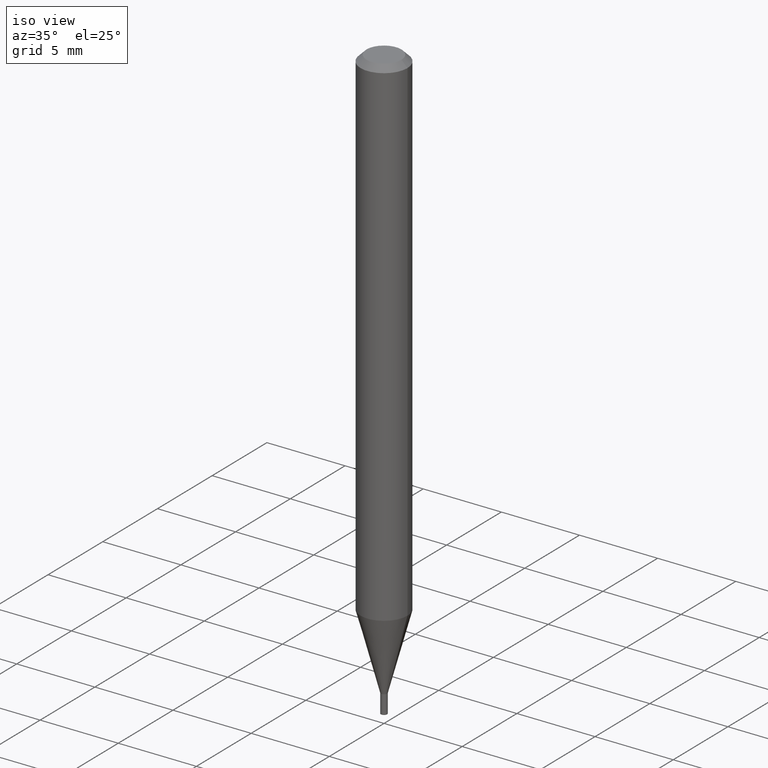
[diagram: clean part render]
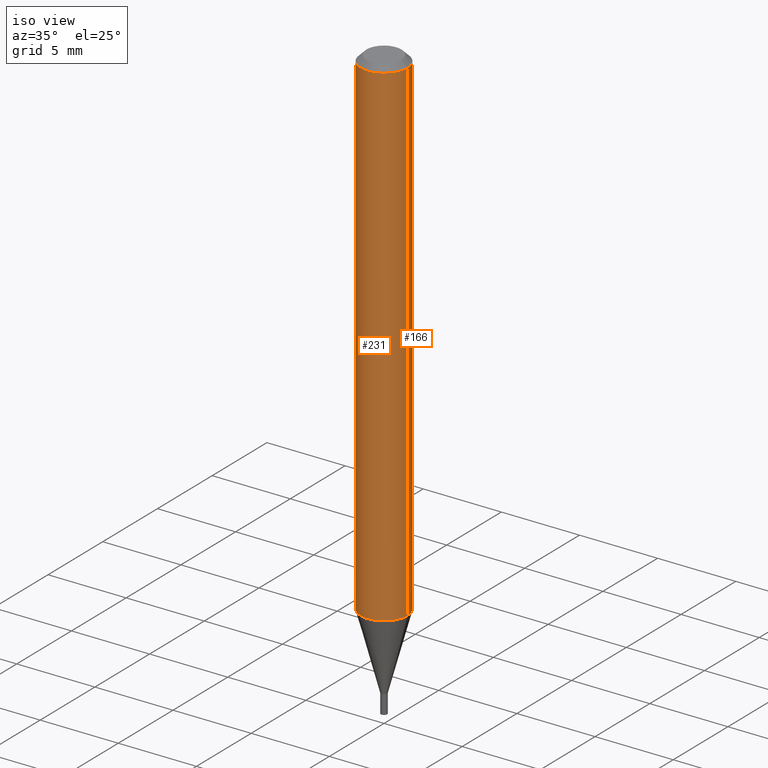
[diagram: same view with one multi-face feature highlighted, each face labeled with its STEP entity id]
A machine part, iso view. The highlighted faces form ONE feature: a constant-radius fillet chain: 2 tangent blend faces with common blend radius 1.4999 mm. The faces share edges in the B-rep.
Their STEP definitions:
[1] entity #166 (Cylinder):
#4 = EDGE_CURVE ( 'NONE', #89, #360, #392, .T. ) ;
#6 = AXIS2_PLACEMENT_3D ( 'NONE', #301, #50, #116 ) ;
#24 = LINE ( 'NONE', #210, #289 ) ;
#40 = ORIENTED_EDGE ( 'NONE', *, *, #367, .T. ) ;
#45 = CYLINDRICAL_SURFACE ( 'NONE', #6, 0.05904999999999999832 ) ;
#50 = DIRECTION ( 'NONE',  ( -2.445468806185136597E-29, 3.491481338843145583E-15, 1.000000000000000000 ) ) ;
#52 = VERTEX_POINT ( 'NONE', #377 ) ;
#89 = VERTEX_POINT ( 'NONE', #206 ) ;
#109 = ORIENTED_EDGE ( 'NONE', *, *, #4, .F. ) ;
#116 = DIRECTION ( 'NONE',  ( 1.000000000000000000, -6.982962677686266711E-15, 4.876176775795936353E-29 ) ) ;
#132 = VECTOR ( 'NONE', #138, 39.37007874015748143 ) ;
#138 = DIRECTION ( 'NONE',  ( -2.445468806185136877E-29, 3.491481338843145188E-15, 1.000000000000000000 ) ) ;
#140 = CIRCLE ( 'NONE', #302, 0.05904999999999999832 ) ;
#146 = EDGE_LOOP ( 'NONE', ( #361, #40, #225, #109 ) ) ;
#150 = CARTESIAN_POINT ( 'NONE',  ( 0.05904999999999999832, -4.647161662000212105E-16, -0.01499999999999999944 ) ) ;
#157 = VERTEX_POINT ( 'NONE', #405 ) ;
#166 = ADVANCED_FACE ( 'NONE', ( #295 ), #45, .T. ) ;
#175 = CARTESIAN_POINT ( 'NONE',  ( 0.05904999999999999832, -4.123439461173740327E-16, 2.879382386107500220E-30 ) ) ;
#189 = CARTESIAN_POINT ( 'NONE',  ( 3.668203209277705088E-31, -5.237222008264718399E-17, -0.01499999999999999944 ) ) ;
#206 = CARTESIAN_POINT ( 'NONE',  ( 0.05904999999999999138, -4.817612284776347072E-15, -1.261718998652473944 ) ) ;
#210 = CARTESIAN_POINT ( 'NONE',  ( -0.05904999999999999832, 4.195754854663391478E-16, -2.904631170795521892E-30 ) ) ;
#216 = EDGE_CURVE ( 'NONE', #360, #52, #140, .T. ) ;
#225 = ORIENTED_EDGE ( 'NONE', *, *, #216, .F. ) ;
#236 = DIRECTION ( 'NONE',  ( -2.445468806185136877E-29, 3.491481338843145188E-15, 1.000000000000000000 ) ) ;
#263 = DIRECTION ( 'NONE',  ( 1.000000000000000000, -6.982962677686273021E-15, 0.000000000000000000 ) ) ;
#289 = VECTOR ( 'NONE', #236, 39.37007874015748143 ) ;
#294 = DIRECTION ( 'NONE',  ( -2.445468806185136597E-29, 3.491481338843145583E-15, 1.000000000000000000 ) ) ;
#295 = FACE_OUTER_BOUND ( 'NONE', #146, .T. ) ;
#299 = CARTESIAN_POINT ( 'NONE',  ( 3.085494453375771234E-29, -4.405268338658972941E-15, -1.261718998652473944 ) ) ;
#301 = CARTESIAN_POINT ( 'NONE',  ( 0.000000000000000000, 0.000000000000000000, 0.000000000000000000 ) ) ;
#302 = AXIS2_PLACEMENT_3D ( 'NONE', #189, #311, #441 ) ;
#311 = DIRECTION ( 'NONE',  ( -2.445468806185136597E-29, 3.491481338843145583E-15, 1.000000000000000000 ) ) ;
#321 = CIRCLE ( 'NONE', #422, 0.05904999999999999832 ) ;
#360 = VERTEX_POINT ( 'NONE', #150 ) ;
#361 = ORIENTED_EDGE ( 'NONE', *, *, #364, .T. ) ;
#364 = EDGE_CURVE ( 'NONE', #89, #157, #321, .T. ) ;
#367 = EDGE_CURVE ( 'NONE', #157, #52, #24, .T. ) ;
#377 = CARTESIAN_POINT ( 'NONE',  ( -0.05904999999999999832, -1.809244793904471109E-15, -0.01499999999999999944 ) ) ;
#392 = LINE ( 'NONE', #175, #132 ) ;
#405 = CARTESIAN_POINT ( 'NONE',  ( -0.05904999999999999138, -3.985692853192634237E-15, -1.261718998652473944 ) ) ;
#422 = AXIS2_PLACEMENT_3D ( 'NONE', #299, #294, #263 ) ;
#441 = DIRECTION ( 'NONE',  ( 1.000000000000000000, -6.982962677686266711E-15, 0.000000000000000000 ) ) ;
[2] entity #231 (Cylinder):
#4 = EDGE_CURVE ( 'NONE', #89, #360, #392, .T. ) ;
#24 = LINE ( 'NONE', #210, #289 ) ;
#39 = AXIS2_PLACEMENT_3D ( 'NONE', #265, #192, #376 ) ;
#52 = VERTEX_POINT ( 'NONE', #377 ) ;
#86 = DIRECTION ( 'NONE',  ( -2.445468806185136597E-29, 3.491481338843145583E-15, 1.000000000000000000 ) ) ;
#89 = VERTEX_POINT ( 'NONE', #206 ) ;
#125 = EDGE_CURVE ( 'NONE', #52, #360, #145, .T. ) ;
#132 = VECTOR ( 'NONE', #138, 39.37007874015748143 ) ;
#138 = DIRECTION ( 'NONE',  ( -2.445468806185136877E-29, 3.491481338843145188E-15, 1.000000000000000000 ) ) ;
#145 = CIRCLE ( 'NONE', #183, 0.05904999999999999832 ) ;
#148 = EDGE_CURVE ( 'NONE', #157, #89, #369, .T. ) ;
#150 = CARTESIAN_POINT ( 'NONE',  ( 0.05904999999999999832, -4.647161662000212105E-16, -0.01499999999999999944 ) ) ;
#157 = VERTEX_POINT ( 'NONE', #405 ) ;
#175 = CARTESIAN_POINT ( 'NONE',  ( 0.05904999999999999832, -4.123439461173740327E-16, 2.879382386107500220E-30 ) ) ;
#179 = DIRECTION ( 'NONE',  ( -2.445468806185136597E-29, 3.491481338843145583E-15, 1.000000000000000000 ) ) ;
#183 = AXIS2_PLACEMENT_3D ( 'NONE', #222, #179, #330 ) ;
#191 = CYLINDRICAL_SURFACE ( 'NONE', #39, 0.05904999999999999832 ) ;
#192 = DIRECTION ( 'NONE',  ( -2.445468806185136597E-29, 3.491481338843145583E-15, 1.000000000000000000 ) ) ;
#204 = AXIS2_PLACEMENT_3D ( 'NONE', #269, #86, #267 ) ;
#206 = CARTESIAN_POINT ( 'NONE',  ( 0.05904999999999999138, -4.817612284776347072E-15, -1.261718998652473944 ) ) ;
#210 = CARTESIAN_POINT ( 'NONE',  ( -0.05904999999999999832, 4.195754854663391478E-16, -2.904631170795521892E-30 ) ) ;
#215 = ORIENTED_EDGE ( 'NONE', *, *, #367, .F. ) ;
#222 = CARTESIAN_POINT ( 'NONE',  ( 3.668203209277705088E-31, -5.237222008264718399E-17, -0.01499999999999999944 ) ) ;
#231 = ADVANCED_FACE ( 'NONE', ( #382 ), #191, .T. ) ;
#236 = DIRECTION ( 'NONE',  ( -2.445468806185136877E-29, 3.491481338843145188E-15, 1.000000000000000000 ) ) ;
#242 = ORIENTED_EDGE ( 'NONE', *, *, #125, .F. ) ;
#265 = CARTESIAN_POINT ( 'NONE',  ( 0.000000000000000000, 0.000000000000000000, 0.000000000000000000 ) ) ;
#267 = DIRECTION ( 'NONE',  ( 1.000000000000000000, -6.982962677686273021E-15, 0.000000000000000000 ) ) ;
#269 = CARTESIAN_POINT ( 'NONE',  ( 3.085494453375771234E-29, -4.405268338658972941E-15, -1.261718998652473944 ) ) ;
#289 = VECTOR ( 'NONE', #236, 39.37007874015748143 ) ;
#306 = ORIENTED_EDGE ( 'NONE', *, *, #148, .T. ) ;
#330 = DIRECTION ( 'NONE',  ( 1.000000000000000000, -6.982962677686266711E-15, 0.000000000000000000 ) ) ;
#341 = ORIENTED_EDGE ( 'NONE', *, *, #4, .T. ) ;
#360 = VERTEX_POINT ( 'NONE', #150 ) ;
#363 = EDGE_LOOP ( 'NONE', ( #215, #306, #341, #242 ) ) ;
#367 = EDGE_CURVE ( 'NONE', #157, #52, #24, .T. ) ;
#369 = CIRCLE ( 'NONE', #204, 0.05904999999999999832 ) ;
#376 = DIRECTION ( 'NONE',  ( 1.000000000000000000, -6.982962677686266711E-15, 4.876176775795936353E-29 ) ) ;
#377 = CARTESIAN_POINT ( 'NONE',  ( -0.05904999999999999832, -1.809244793904471109E-15, -0.01499999999999999944 ) ) ;
#382 = FACE_OUTER_BOUND ( 'NONE', #363, .T. ) ;
#392 = LINE ( 'NONE', #175, #132 ) ;
#405 = CARTESIAN_POINT ( 'NONE',  ( -0.05904999999999999138, -3.985692853192634237E-15, -1.261718998652473944 ) ) ;